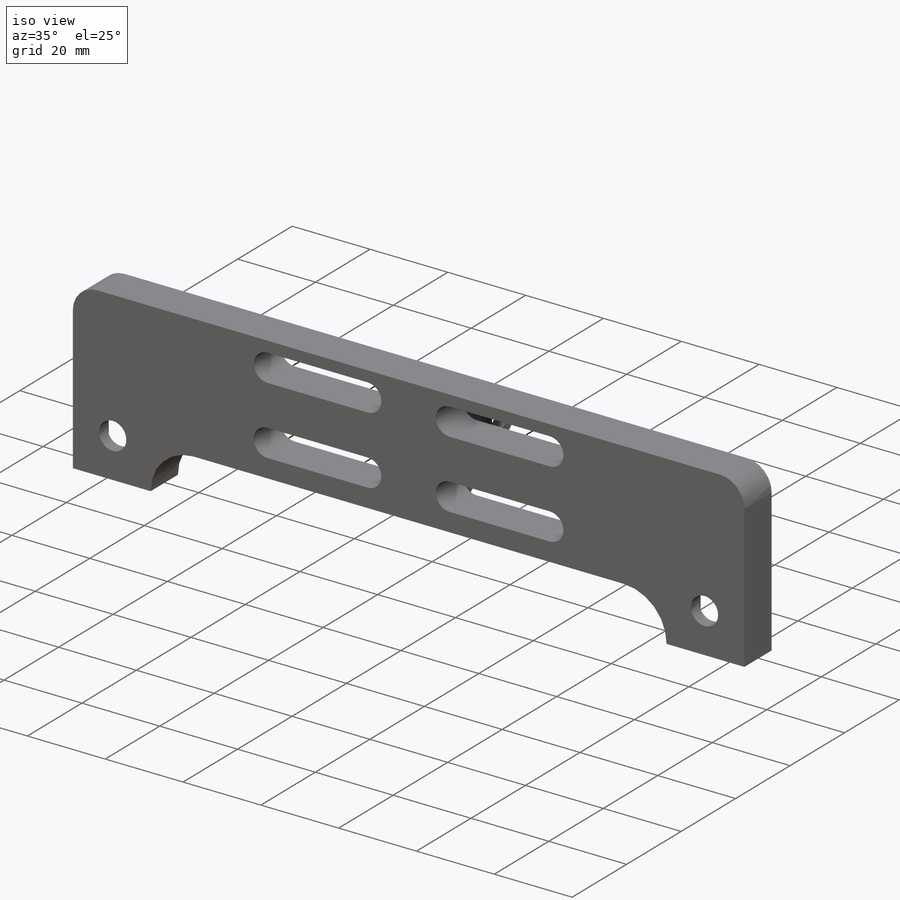
[diagram: iso view]
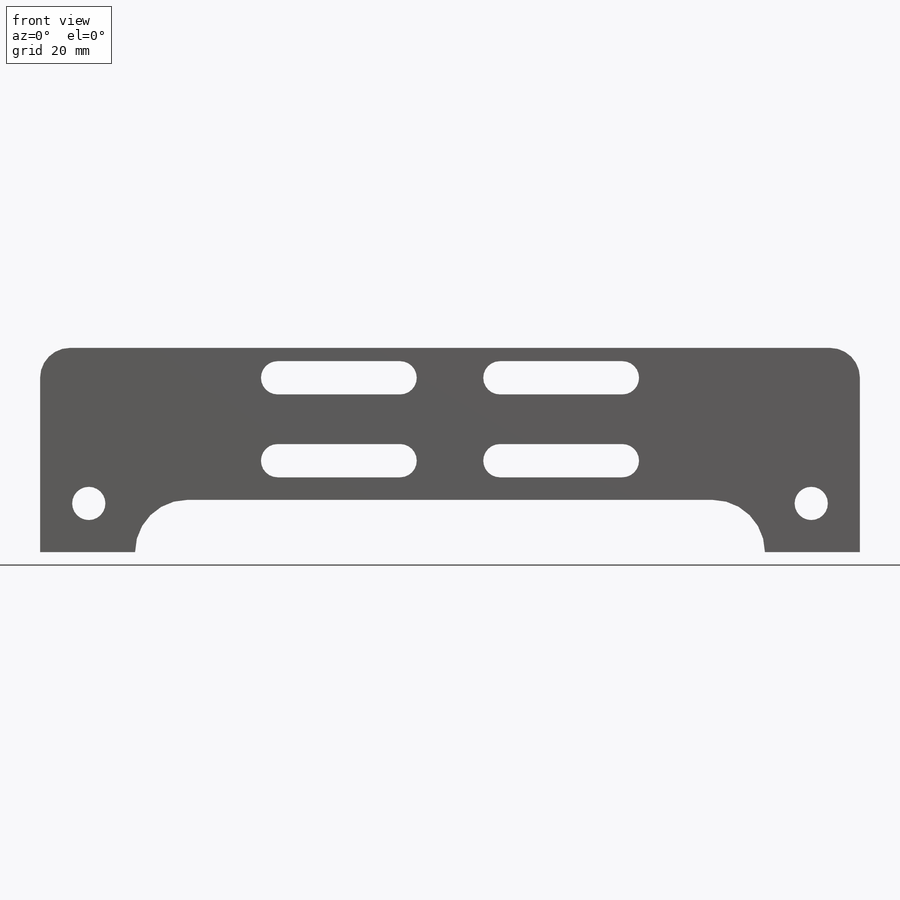
[diagram: front view]
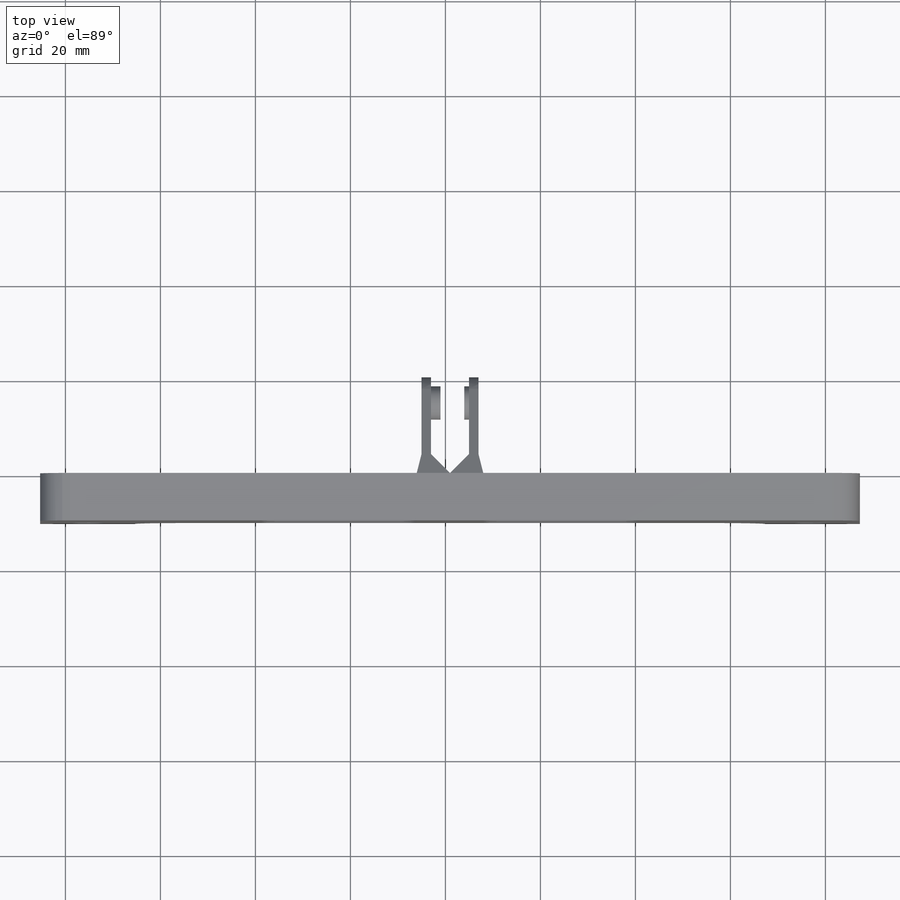
[diagram: top view]
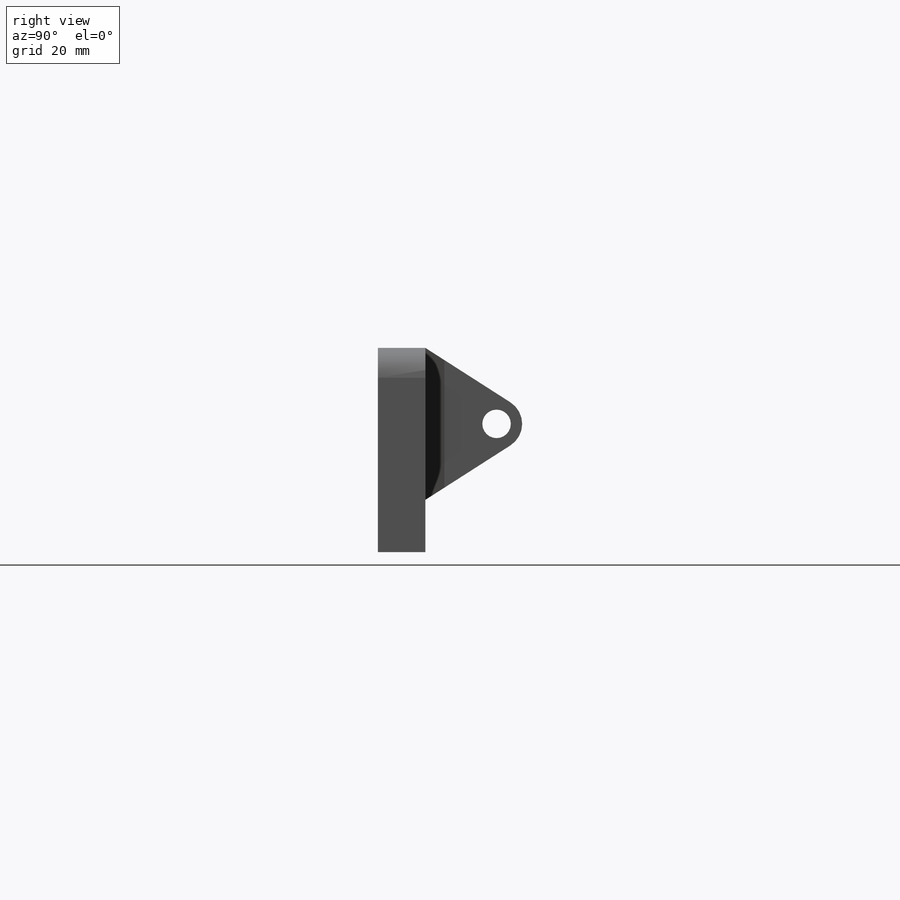
[diagram: right view]
SOLIDWORKS PART (.sldprt)
format: sldprt  version: not decoded by parser v0  size: 930,304 bytes
history: native  units: mm
features: sketch x30, extrude x18, cut_extrude x12, plane x4, mirror x4, material x1 (+13 scaffold rows collapsed)
feature tree (82):
  scaffold x13  (default folders/planes/origin — collapsed)
  material  "Material <not specified>"
  sketch  "Sketch1"  dims[c1.D2=8.6mm c1.D3=8.6mm c1.D4=6.3mm c1.D5=6.3mm c1.D1=160.0mm c2.D5=6.3mm c2.D6=160.0mm c3.D6=0.5deg c4.D6=~200.347008mm c5.D6=0.5deg c6.D6=32.0mm c6.D7=2.0mm c6.D8=2.0mm c6.D9=12.5mm c6.D10=12.5mm c6.D11=2.0mm c6.D12=2.0mm c6.D13=12.5mm c6.D14=12.5mm]
  extrude  "Boss-Extrude1"  Depth=8mm
  sketch  "Sketch2"  dims[c1.D1=20.0mm c1.D2=5.7mm c2.D1=50.0mm c2.D2=50.0mm c2.D3=3.5mm c2.D4=3.5mm c2.D5=3.5mm c2.D6=3.5mm]
  cut_extrude  "Cut-Extrude1"  Depth=8mm
  extrude  "Boss-Extrude2"  [1 undecoded]
  sketch  "Sketch1<2>"  dims[D1=10.0mm]
  cut_extrude  "Cut-Extrude2"  [1 undecoded]
  sketch  "Sketch2<2>"  dims[D1=10.0mm]
  sketch  "Sketch3"
  extrude  "Boss-Extrude3"  Depth=2mm
  sketch  "Sketch4"
  extrude  "Boss-Extrude5"  Depth=2mm
  sketch  "Sketch5"  dims[c1.D1=5.5mm c1.D2=5.5mm c2.D1=5.5mm c2.D2=5.5mm]
  extrude  "Boss-Extrude6"  Depth=10mm
  sketch  "Sketch6"  dims[D1=5.5mm D2=5.5mm]
  extrude  "Boss-Extrude7"  Depth=10mm
  sketch  "Sketch7"  dims[D1=20.0mm D2=20.0mm D3=11.0mm D4=11.0mm D5=11.0mm D6=11.0mm]
  extrude  "Boss-Extrude8"  Depth=10mm
  sketch  "Sketch8"
  extrude  "Boss-Extrude9"  [1 undecoded]
  sketch  "Sketch12"  dims[D1=16.5mm D2=2.0mm D3=2.0mm D4=2.0mm D5=2.0mm]
  cut_extrude  "Cut-Extrude6"  Depth=7mm
  sketch  "Sketch13"  dims[D1=7.0mm D2=7.0mm]
  cut_extrude  "Cut-Extrude7"  Depth=7mm
  sketch  "Sketch14"  dims[c1.D1=3.0mm c1.D2=3.0mm c1.D3=2.0mm c2.D1=5.0mm c2.D2=5.0mm c2.D3=~74.042714mm c2.D4=140.0mm c3.D3=70.0mm c3.D4=70.0mm c3.D5=70.0mm c3.D6=70.0mm c3.D7=5.0mm c3.D8=5.0mm c3.D9=10.0mm c3.D1=5.0mm]
  cut_extrude  "Cut-Extrude11"  Depth=5mm
  sketch  "Sketch15"
  extrude  "Boss-Extrude10"  Depth=8mm
  sketch  "Sketch16"  dims[D1=5.0mm]
  extrude  "Boss-Extrude11"  Depth=10mm
  plane  "Plane1"  Offset=86.3mm
  mirror  "Mirror1"
  sketch  "Sketch17"  dims[D1=5.0mm]
  extrude  "Boss-Extrude12"  Depth=10mm
  mirror  "Mirror2"
  sketch  "Sketch18"  dims[c1.D1=3.0mm c1.D2=3.0mm c1.D3=2.0mm c1.D4=2.0mm c1.D5=20.0mm c1.D6=20.0mm c1.D7=~8.431965mm c1.D8=~7.568035mm c2.D7=8.0mm c2.D8=8.0mm]
  extrude  "Boss-Extrude13"  Depth=20mm
  sketch  "Sketch19"  dims[D1=7.0mm D2=7.0mm]
  cut_extrude  "Cut-Extrude12"  Depth=20mm
  sketch  "Sketch20"  dims[D1=7.0mm D2=5.0mm]
  cut_extrude  "Cut-Extrude13"  Depth=20mm
  plane  "Plane2"  Offset=14mm
  sketch  "Sketch21"
  cut_extrude  "Cut-Extrude15"  Depth=28mm
  sketch  "Sketch23"  dims[D1=4.0mm D2=4.0mm D3=2.0mm D4=2.0mm]
  extrude  "Boss-Extrude14"  Depth=25mm
  sketch  "Sketch24"  dims[D2=6.0mm D1=15.0mm]
  cut_extrude  "Cut-Extrude16"  Depth=25mm
  sketch  "Sketch25"
  cut_extrude  "Cut-Extrude18"  Depth=25mm
  plane  "Plane3"
  sketch  "Sketch28"  dims[c1.D1=1.0mm c1.D2=1.0mm c1.D3=4.0mm c1.D4=4.0mm c1.D5=4.0mm c1.D6=4.0mm c1.D7=1.0mm c2.D4=4.0mm c2.D7=4.0mm c2.D2=4.0mm c2.D8=4.0mm c3.D4=1.0mm c3.D8=4.0mm]
  extrude  "Boss-Extrude15"  [1 undecoded]
  sketch  "Sketch29"
  cut_extrude  "Cut-Extrude19"  [1 undecoded]
  sketch  "Sketch30"
  cut_extrude  "Cut-Extrude20"  [1 undecoded]
  sketch  "Sketch31"  dims[D1=16.0mm D2=16.0mm D3=0.25mm D4=0.25mm]
  extrude  "Boss-Extrude16"  [1 undecoded]
  plane  "Plane4"  Offset=86.3mm
  mirror  "Mirror3"
  sketch  "Sketch32"  dims[D1=8.1mm]
  extrude  "Boss-Extrude17"  [1 undecoded]
  mirror  "Mirror4"
  sketch  "Sketch33"  dims[D1=7.0mm]
  extrude  "Boss-Extrude18"  Depth=2mm
  sketch  "Sketch34"  dims[D1=7.0mm]
  extrude  "Boss-Extrude19"  Depth=1mm
decode coverage: 44 of 64 modeling features carry decoded parameters
note: ~ marks probable driven/reference dimensions
note: 8 parameter values undecoded
summary: no parameter record found for 8 features
note: suppression state not decoded; provenance and decode notes live in map.json
